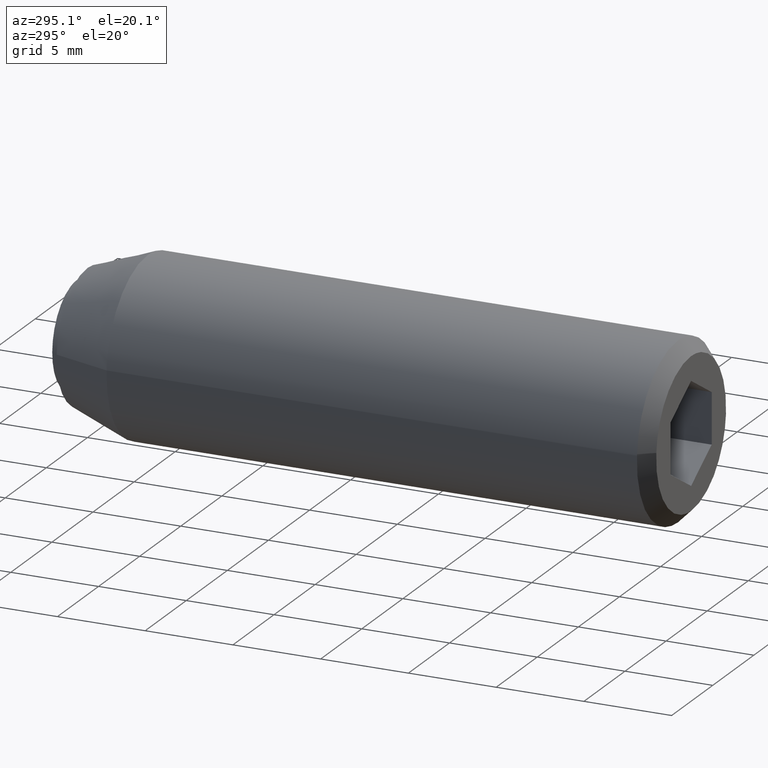
[diagram: clean part render]
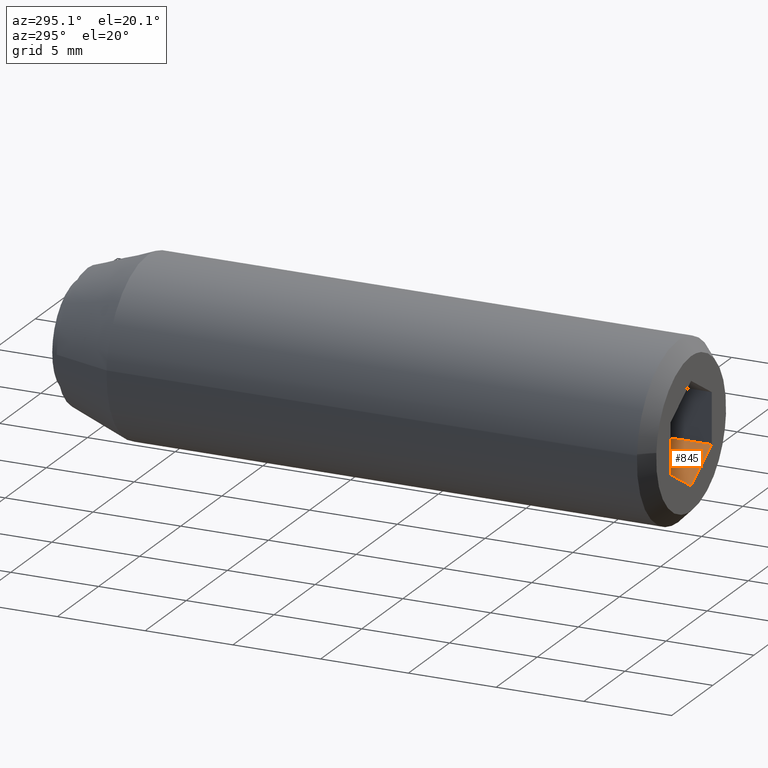
[diagram: same view with one face highlighted and labeled with its STEP entity id]
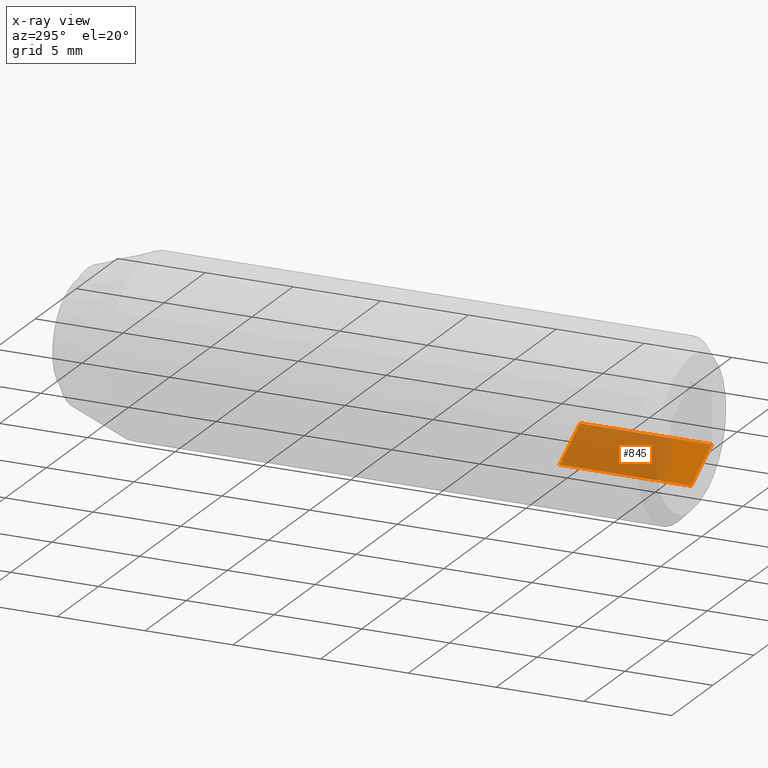
[diagram: x-ray of the same camera — body ghosted, the highlighted face saturated]
A machine part, auxiliary view. The second image highlights one B-rep face of the part: STEP entity #845.
The next image is the same camera in x-ray: the body ghosted, the highlighted face saturated — about 75% of this face is hidden behind the body in this view.
In plain terms, the highlighted face is a freeform B-spline surface patch.
Its self-contained STEP definition (entity closure, byte-faithful):
#745=CARTESIAN_POINT('',(0.0,-26.899999999999999,-2.886751000000000));
#746=VERTEX_POINT('',#745);
#752=CARTESIAN_POINT('',(2.500000000000000,-26.899999999999999,-1.443376000000000));
#753=VERTEX_POINT('',#752);
#754=CARTESIAN_POINT('',(0.0,-26.899999999999999,-2.886751000000000));
#755=CARTESIAN_POINT('',(2.500000000000000,-26.899999999999999,-1.443376000000000));
#756=QUASI_UNIFORM_CURVE('',1,(#754,#755),.UNSPECIFIED.,.F.,.U.);
#757=EDGE_CURVE('',#746,#753,#756,.T.);
#807=CARTESIAN_POINT('',(2.500000000000000,-34.399999999999999,-1.443376000000000));
#808=VERTEX_POINT('',#807);
#816=CARTESIAN_POINT('',(2.500000000000000,-26.899999999999999,-1.443376000000000));
#817=CARTESIAN_POINT('',(2.500000000000000,-34.399999999999999,-1.443376000000000));
#818=QUASI_UNIFORM_CURVE('',1,(#816,#817),.UNSPECIFIED.,.F.,.U.);
#819=EDGE_CURVE('',#753,#808,#818,.T.);
#824=CARTESIAN_POINT('',(2.624875018622719,-34.774626604770127,-1.371279407998156));
#825=CARTESIAN_POINT('',(-0.124875063326210,-34.774626604770127,-2.958847617811388));
#826=CARTESIAN_POINT('',(2.624875018622719,-26.525374736334381,-1.371279407998156));
#827=CARTESIAN_POINT('',(-0.124875063326210,-26.525374736334381,-2.958847617811388));
#828=B_SPLINE_SURFACE_WITH_KNOTS('',1,1,((#824,#826),(#825,#827)),.UNSPECIFIED.,.F.,.F.,.U.,(2,2),(2,2),(0.0,3.175137529932795),(0.0,8.249251868435749),.UNSPECIFIED.);
#829=CARTESIAN_POINT('',(0.0,-34.399999999999999,-2.886751000000000));
#830=VERTEX_POINT('',#829);
#831=CARTESIAN_POINT('',(0.0,-34.399999999999999,-2.886751000000000));
#832=CARTESIAN_POINT('',(2.500000000000000,-34.399999999999999,-1.443376000000000));
#833=QUASI_UNIFORM_CURVE('',1,(#831,#832),.UNSPECIFIED.,.F.,.U.);
#834=EDGE_CURVE('',#830,#808,#833,.T.);
#835=ORIENTED_EDGE('',*,*,#834,.T.);
#836=ORIENTED_EDGE('',*,*,#819,.F.);
#837=ORIENTED_EDGE('',*,*,#757,.F.);
#838=CARTESIAN_POINT('',(0.0,-26.899999999999999,-2.886751000000000));
#839=CARTESIAN_POINT('',(0.0,-34.399999999999999,-2.886751000000000));
#840=QUASI_UNIFORM_CURVE('',1,(#838,#839),.UNSPECIFIED.,.F.,.U.);
#841=EDGE_CURVE('',#746,#830,#840,.T.);
#842=ORIENTED_EDGE('',*,*,#841,.T.);
#843=EDGE_LOOP('',(#835,#836,#837,#842));
#844=FACE_OUTER_BOUND('',#843,.T.);
#845=ADVANCED_FACE('',(#844),#828,.F.);